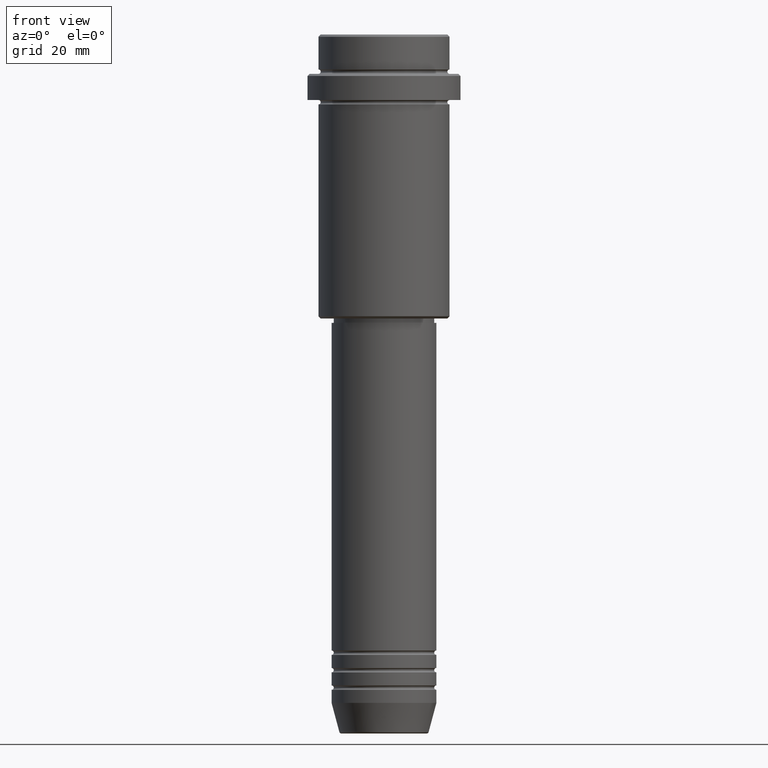
[diagram: clean part render]
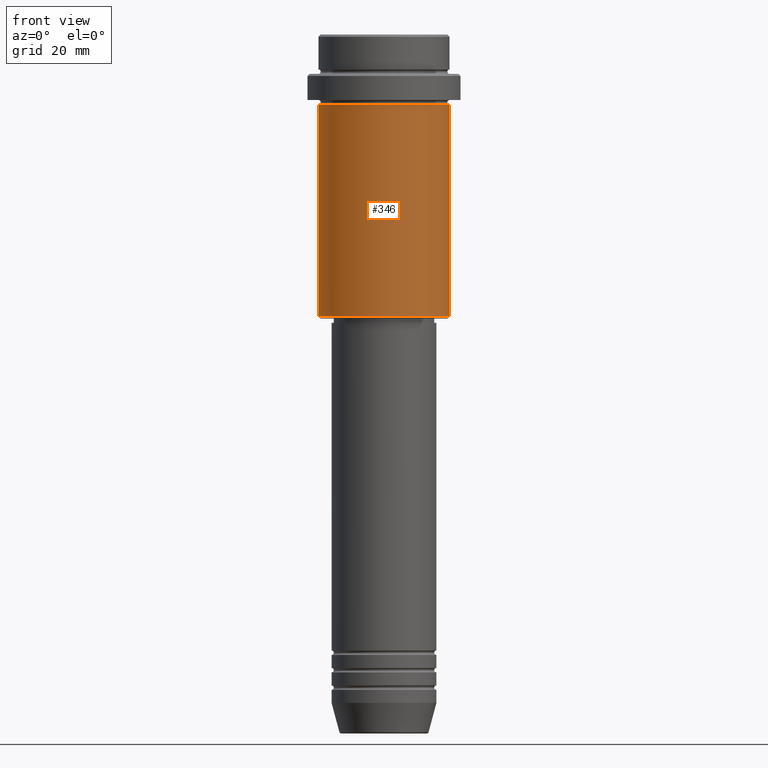
[diagram: same view with one face highlighted and labeled with its STEP entity id]
A machine part, front view. The second image highlights one B-rep face of the part: STEP entity #346.
In plain terms, the highlighted cylindrical surface (partial cylindrical patch) has radius 15 mm, axis along (-0, -0, 1).
Its self-contained STEP definition (entity closure, byte-faithful):
#40 = ORIENTED_EDGE ( 'NONE', *, *, #1326, .T. ) ;
#76 = CARTESIAN_POINT ( 'NONE',  ( -15.00000000000000000, 1.836970198721029589E-15, -64.50000000000000000 ) ) ;
#112 = AXIS2_PLACEMENT_3D ( 'NONE', #1244, #495, #932 ) ;
#117 = EDGE_CURVE ( 'NONE', #1405, #751, #265, .T. ) ;
#265 = CIRCLE ( 'NONE', #1189, 15.00000000000000178 ) ;
#298 = CARTESIAN_POINT ( 'NONE',  ( 15.00000000000000000, 0.000000000000000000, 0.000000000000000000 ) ) ;
#341 = EDGE_CURVE ( 'NONE', #1349, #1360, #604, .T. ) ;
#346 = ADVANCED_FACE ( 'NONE', ( #615 ), #1144, .T. ) ;
#383 = DIRECTION ( 'NONE',  ( -1.000000000000000000, 0.000000000000000000, 0.000000000000000000 ) ) ;
#470 = CARTESIAN_POINT ( 'NONE',  ( -15.00000000000000000, 1.836970198721029589E-15, 0.000000000000000000 ) ) ;
#495 = DIRECTION ( 'NONE',  ( -0.000000000000000000, -0.000000000000000000, 1.000000000000000000 ) ) ;
#505 = CARTESIAN_POINT ( 'NONE',  ( 15.00000000000000178, 0.000000000000000000, -16.00000000000000000 ) ) ;
#507 = AXIS2_PLACEMENT_3D ( 'NONE', #714, #1355, #383 ) ;
#564 = LINE ( 'NONE', #470, #770 ) ;
#603 = VECTOR ( 'NONE', #869, 1000.000000000000000 ) ;
#604 = CIRCLE ( 'NONE', #507, 15.00000000000000000 ) ;
#615 = FACE_OUTER_BOUND ( 'NONE', #1041, .T. ) ;
#714 = CARTESIAN_POINT ( 'NONE',  ( 0.000000000000000000, 0.000000000000000000, -64.50000000000000000 ) ) ;
#729 = CARTESIAN_POINT ( 'NONE',  ( 15.00000000000000000, 0.000000000000000000, -64.50000000000000000 ) ) ;
#749 = ORIENTED_EDGE ( 'NONE', *, *, #117, .F. ) ;
#751 = VERTEX_POINT ( 'NONE', #505 ) ;
#770 = VECTOR ( 'NONE', #1314, 1000.000000000000000 ) ;
#869 = DIRECTION ( 'NONE',  ( -0.000000000000000000, -0.000000000000000000, 1.000000000000000000 ) ) ;
#870 = DIRECTION ( 'NONE',  ( -0.000000000000000000, -0.000000000000000000, 1.000000000000000000 ) ) ;
#932 = DIRECTION ( 'NONE',  ( 1.000000000000000000, 0.000000000000000000, 0.000000000000000000 ) ) ;
#977 = DIRECTION ( 'NONE',  ( 1.000000000000000000, 0.000000000000000000, 0.000000000000000000 ) ) ;
#1009 = EDGE_CURVE ( 'NONE', #1349, #1405, #564, .T. ) ;
#1041 = EDGE_LOOP ( 'NONE', ( #1276, #1097, #40, #749 ) ) ;
#1097 = ORIENTED_EDGE ( 'NONE', *, *, #341, .T. ) ;
#1144 = CYLINDRICAL_SURFACE ( 'NONE', #112, 15.00000000000000000 ) ;
#1189 = AXIS2_PLACEMENT_3D ( 'NONE', #1401, #870, #977 ) ;
#1244 = CARTESIAN_POINT ( 'NONE',  ( 0.000000000000000000, 0.000000000000000000, 0.000000000000000000 ) ) ;
#1276 = ORIENTED_EDGE ( 'NONE', *, *, #1009, .F. ) ;
#1314 = DIRECTION ( 'NONE',  ( -0.000000000000000000, -0.000000000000000000, 1.000000000000000000 ) ) ;
#1326 = EDGE_CURVE ( 'NONE', #1360, #751, #1374, .T. ) ;
#1349 = VERTEX_POINT ( 'NONE', #76 ) ;
#1355 = DIRECTION ( 'NONE',  ( -0.000000000000000000, -0.000000000000000000, 1.000000000000000000 ) ) ;
#1360 = VERTEX_POINT ( 'NONE', #729 ) ;
#1374 = LINE ( 'NONE', #298, #603 ) ;
#1382 = CARTESIAN_POINT ( 'NONE',  ( -15.00000000000000355, 1.836970198721029983E-15, -16.00000000000000000 ) ) ;
#1401 = CARTESIAN_POINT ( 'NONE',  ( 0.000000000000000000, 0.000000000000000000, -16.00000000000000000 ) ) ;
#1405 = VERTEX_POINT ( 'NONE', #1382 ) ;